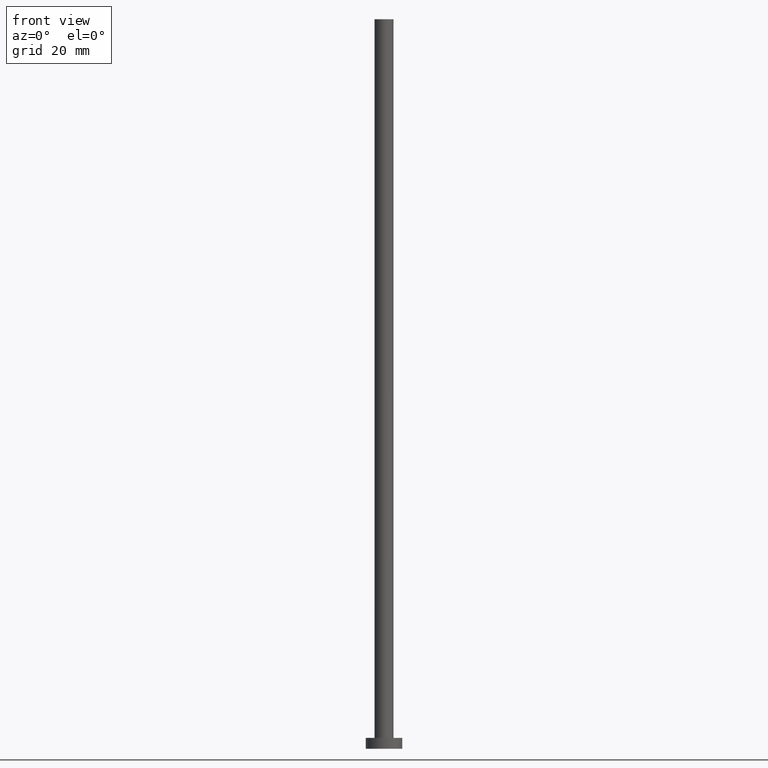
[diagram: clean part render]
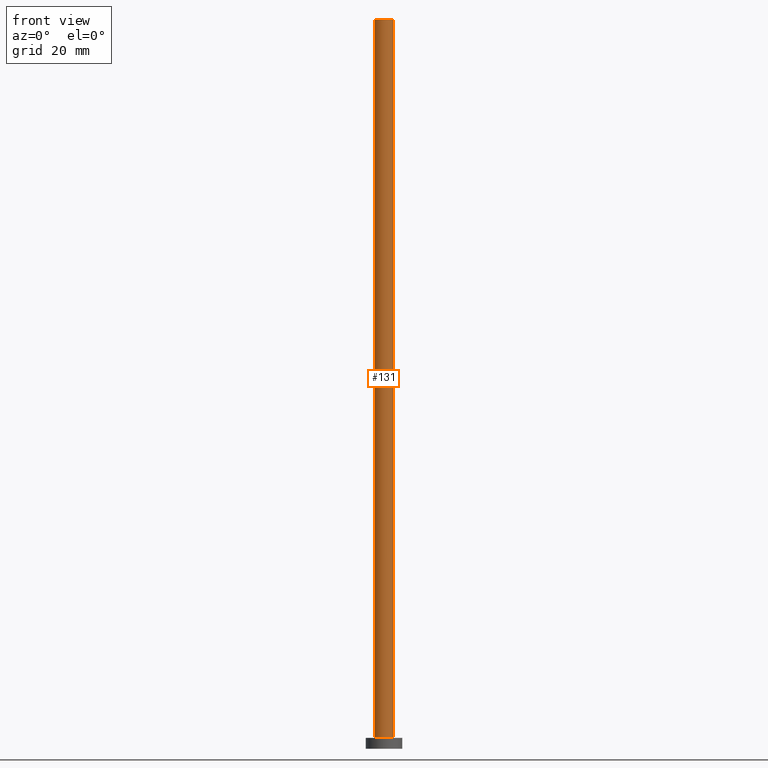
[diagram: same view with one face highlighted and labeled with its STEP entity id]
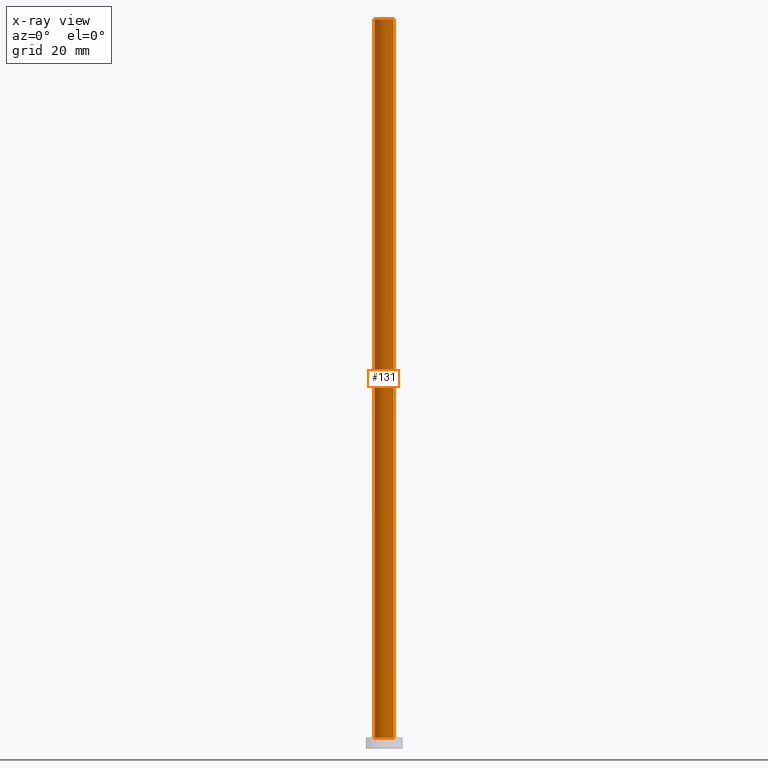
[diagram: x-ray of the same camera — body ghosted, the highlighted face saturated]
A machine part, front view. The second image highlights one B-rep face of the part: STEP entity #131.
The next image is the same camera in x-ray: the body ghosted, the highlighted face saturated — about 0% of this face is hidden behind the body in this view.
In plain terms, the highlighted cylindrical surface (edge-blend (fillet) strip) has radius 2.6 mm, axis along (-0, -0, -1).
Its self-contained STEP definition (entity closure, byte-faithful):
#2 = EDGE_CURVE ( 'NONE', #81, #23, #125, .T. ) ;
#15 = CARTESIAN_POINT ( 'NONE',  ( 2.600000000000000089, 3.184081677783118191E-16, 200.0000000000000000 ) ) ;
#17 = VERTEX_POINT ( 'NONE', #198 ) ;
#22 = VERTEX_POINT ( 'NONE', #37 ) ;
#23 = VERTEX_POINT ( 'NONE', #218 ) ;
#32 = CYLINDRICAL_SURFACE ( 'NONE', #60, 2.600000000000000089 ) ;
#37 = CARTESIAN_POINT ( 'NONE',  ( 2.600000000000000089, 3.184081677783118191E-16, 200.0000000000000000 ) ) ;
#60 = AXIS2_PLACEMENT_3D ( 'NONE', #169, #110, #245 ) ;
#63 = EDGE_CURVE ( 'NONE', #17, #81, #214, .T. ) ;
#71 = DIRECTION ( 'NONE',  ( 0.000000000000000000, 0.000000000000000000, 1.000000000000000000 ) ) ;
#81 = VERTEX_POINT ( 'NONE', #230 ) ;
#86 = AXIS2_PLACEMENT_3D ( 'NONE', #255, #240, #119 ) ;
#93 = DIRECTION ( 'NONE',  ( 1.000000000000000000, 0.000000000000000000, 0.000000000000000000 ) ) ;
#96 = CIRCLE ( 'NONE', #241, 2.600000000000000089 ) ;
#97 = ORIENTED_EDGE ( 'NONE', *, *, #2, .T. ) ;
#110 = DIRECTION ( 'NONE',  ( -0.000000000000000000, -0.000000000000000000, -1.000000000000000000 ) ) ;
#119 = DIRECTION ( 'NONE',  ( 1.000000000000000000, 0.000000000000000000, 0.000000000000000000 ) ) ;
#123 = EDGE_LOOP ( 'NONE', ( #203, #155, #222, #97 ) ) ;
#125 = CIRCLE ( 'NONE', #86, 2.600000000000000089 ) ;
#131 = ADVANCED_FACE ( 'NONE', ( #190 ), #32, .T. ) ;
#155 = ORIENTED_EDGE ( 'NONE', *, *, #202, .F. ) ;
#158 = VECTOR ( 'NONE', #235, 1000.000000000000000 ) ;
#160 = DIRECTION ( 'NONE',  ( -0.000000000000000000, -0.000000000000000000, -1.000000000000000000 ) ) ;
#169 = CARTESIAN_POINT ( 'NONE',  ( 0.000000000000000000, 0.000000000000000000, 200.0000000000000000 ) ) ;
#190 = FACE_OUTER_BOUND ( 'NONE', #123, .T. ) ;
#193 = LINE ( 'NONE', #15, #249 ) ;
#194 = CARTESIAN_POINT ( 'NONE',  ( -2.600000000000000089, 0.000000000000000000, 200.0000000000000000 ) ) ;
#198 = CARTESIAN_POINT ( 'NONE',  ( -2.600000000000000089, 0.000000000000000000, 200.0000000000000000 ) ) ;
#202 = EDGE_CURVE ( 'NONE', #17, #22, #96, .T. ) ;
#203 = ORIENTED_EDGE ( 'NONE', *, *, #228, .F. ) ;
#214 = LINE ( 'NONE', #194, #158 ) ;
#218 = CARTESIAN_POINT ( 'NONE',  ( 2.600000000000000089, 3.184081677783118191E-16, 3.000000000000000000 ) ) ;
#222 = ORIENTED_EDGE ( 'NONE', *, *, #63, .T. ) ;
#228 = EDGE_CURVE ( 'NONE', #22, #23, #193, .T. ) ;
#230 = CARTESIAN_POINT ( 'NONE',  ( -2.600000000000000089, 0.000000000000000000, 3.000000000000000000 ) ) ;
#235 = DIRECTION ( 'NONE',  ( -0.000000000000000000, -0.000000000000000000, -1.000000000000000000 ) ) ;
#240 = DIRECTION ( 'NONE',  ( 0.000000000000000000, 0.000000000000000000, 1.000000000000000000 ) ) ;
#241 = AXIS2_PLACEMENT_3D ( 'NONE', #242, #71, #93 ) ;
#242 = CARTESIAN_POINT ( 'NONE',  ( 0.000000000000000000, 0.000000000000000000, 200.0000000000000000 ) ) ;
#245 = DIRECTION ( 'NONE',  ( -1.000000000000000000, 0.000000000000000000, 0.000000000000000000 ) ) ;
#249 = VECTOR ( 'NONE', #160, 1000.000000000000000 ) ;
#255 = CARTESIAN_POINT ( 'NONE',  ( 0.000000000000000000, 0.000000000000000000, 3.000000000000000000 ) ) ;